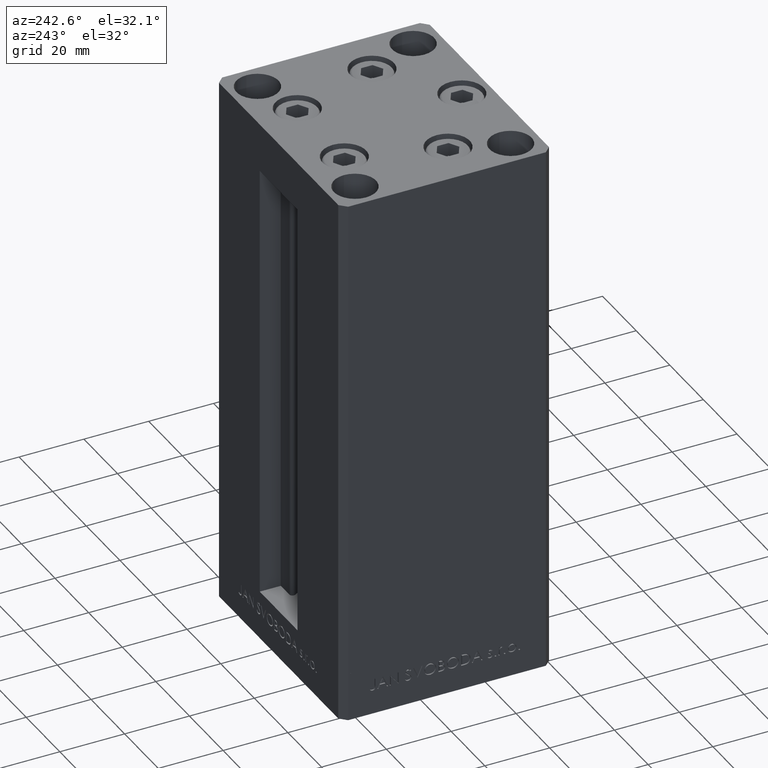
[diagram: clean part render]
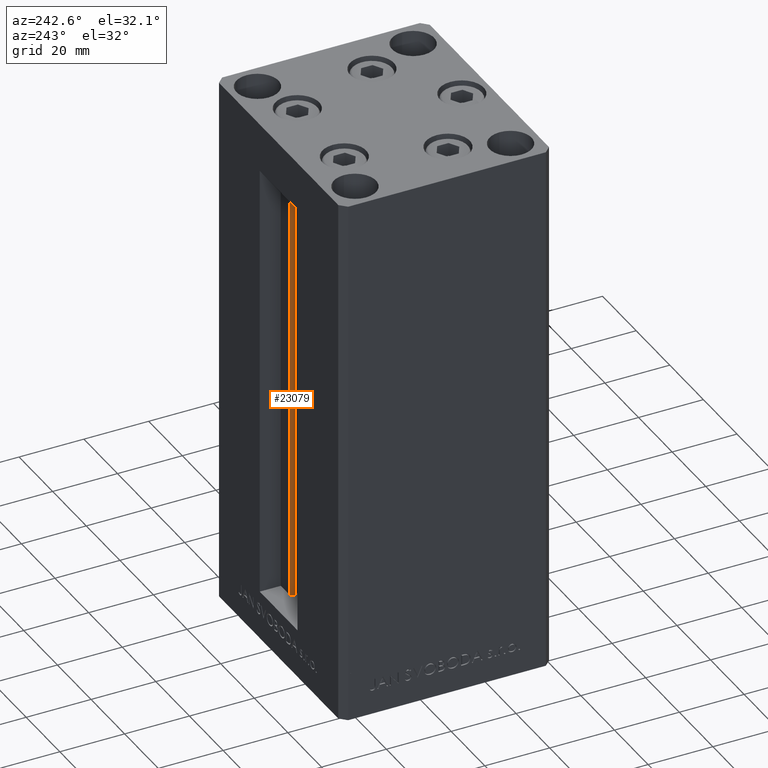
[diagram: same view with one face highlighted and labeled with its STEP entity id]
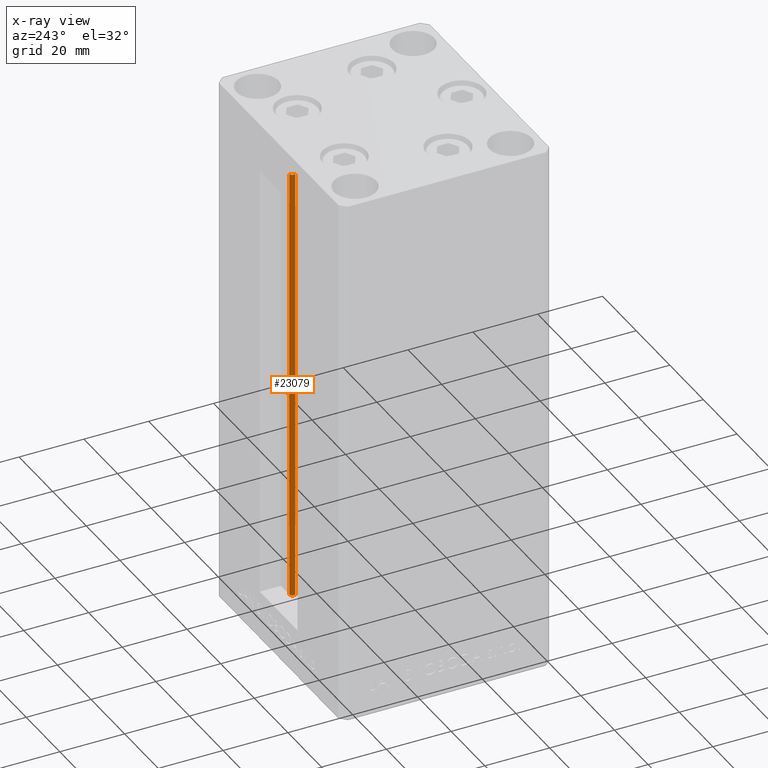
[diagram: x-ray of the same camera — body ghosted, the highlighted face saturated]
A machine part, auxiliary view. The second image highlights one B-rep face of the part: STEP entity #23079.
The next image is the same camera in x-ray: the body ghosted, the highlighted face saturated — about 0% of this face is hidden behind the body in this view.
In plain terms, the highlighted cylindrical surface (edge-blend (fillet) strip) has radius 0.9333 mm, axis along (0, 0, 1).
Its self-contained STEP definition (entity closure, byte-faithful):
#227 = AXIS2_PLACEMENT_3D ( 'NONE', #39496, #36045, #47371 ) ;
#3171 = EDGE_CURVE ( 'NONE', #12037, #41788, #6136, .T. ) ;
#3787 = AXIS2_PLACEMENT_3D ( 'NONE', #16047, #34775, #23455 ) ;
#4628 = ORIENTED_EDGE ( 'NONE', *, *, #41858, .T. ) ;
#4858 = EDGE_LOOP ( 'NONE', ( #36518, #13255, #11603, #4628 ) ) ;
#4949 = DIRECTION ( 'NONE',  ( 1.000000000000000000, 0.000000000000000000, 0.000000000000000000 ) ) ;
#6136 = CIRCLE ( 'NONE', #3787, 0.9333333333340008142 ) ;
#6691 = LINE ( 'NONE', #10858, #41609 ) ;
#9162 = EDGE_CURVE ( 'NONE', #12037, #29074, #6691, .T. ) ;
#10858 = CARTESIAN_POINT ( 'NONE',  ( 5.375042956467947164, 24.59999999999899245, 0.000000000000000000 ) ) ;
#11603 = ORIENTED_EDGE ( 'NONE', *, *, #9162, .T. ) ;
#12037 = VERTEX_POINT ( 'NONE', #38651 ) ;
#13255 = ORIENTED_EDGE ( 'NONE', *, *, #3171, .F. ) ;
#16047 = CARTESIAN_POINT ( 'NONE',  ( 6.183333333334001480, 25.06666666666599141, 0.000000000000000000 ) ) ;
#18997 = CARTESIAN_POINT ( 'NONE',  ( 6.183333333334001480, 25.99999999999999289, 0.000000000000000000 ) ) ;
#19729 = LINE ( 'NONE', #22948, #23711 ) ;
#19789 = EDGE_CURVE ( 'NONE', #41788, #23750, #19729, .T. ) ;
#20545 = FACE_OUTER_BOUND ( 'NONE', #4858, .T. ) ;
#22948 = CARTESIAN_POINT ( 'NONE',  ( 6.183333333334001480, 25.99999999999999289, 0.000000000000000000 ) ) ;
#23079 = ADVANCED_FACE ( 'NONE', ( #20545 ), #32352, .T. ) ;
#23455 = DIRECTION ( 'NONE',  ( 1.000000000000000000, 0.000000000000000000, 0.000000000000000000 ) ) ;
#23711 = VECTOR ( 'NONE', #45592, 1000.000000000000000 ) ;
#23750 = VERTEX_POINT ( 'NONE', #47990 ) ;
#25519 = CARTESIAN_POINT ( 'NONE',  ( 5.375042956467948052, 24.59999999999899245, 136.0000000000000000 ) ) ;
#25657 = DIRECTION ( 'NONE',  ( -0.000000000000000000, -0.000000000000000000, 1.000000000000000000 ) ) ;
#28194 = CIRCLE ( 'NONE', #33730, 0.9333333333340008142 ) ;
#29074 = VERTEX_POINT ( 'NONE', #25519 ) ;
#32352 = CYLINDRICAL_SURFACE ( 'NONE', #227, 0.9333333333340008142 ) ;
#33730 = AXIS2_PLACEMENT_3D ( 'NONE', #43322, #39393, #4949 ) ;
#34775 = DIRECTION ( 'NONE',  ( -0.000000000000000000, -0.000000000000000000, -1.000000000000000000 ) ) ;
#36045 = DIRECTION ( 'NONE',  ( -0.000000000000000000, -0.000000000000000000, 1.000000000000000000 ) ) ;
#36518 = ORIENTED_EDGE ( 'NONE', *, *, #19789, .F. ) ;
#38651 = CARTESIAN_POINT ( 'NONE',  ( 5.375042956467947164, 24.59999999999899245, 0.000000000000000000 ) ) ;
#39393 = DIRECTION ( 'NONE',  ( 0.000000000000000000, 0.000000000000000000, -1.000000000000000000 ) ) ;
#39496 = CARTESIAN_POINT ( 'NONE',  ( 6.183333333334001480, 25.06666666666599141, 0.000000000000000000 ) ) ;
#41609 = VECTOR ( 'NONE', #25657, 1000.000000000000000 ) ;
#41788 = VERTEX_POINT ( 'NONE', #18997 ) ;
#41858 = EDGE_CURVE ( 'NONE', #29074, #23750, #28194, .T. ) ;
#43322 = CARTESIAN_POINT ( 'NONE',  ( 6.183333333334001480, 25.06666666666599141, 136.0000000000000000 ) ) ;
#45592 = DIRECTION ( 'NONE',  ( -0.000000000000000000, -0.000000000000000000, 1.000000000000000000 ) ) ;
#47371 = DIRECTION ( 'NONE',  ( 1.000000000000000000, 0.000000000000000000, 0.000000000000000000 ) ) ;
#47990 = CARTESIAN_POINT ( 'NONE',  ( 6.183333333334001480, 25.99999999999999289, 136.0000000000000000 ) ) ;